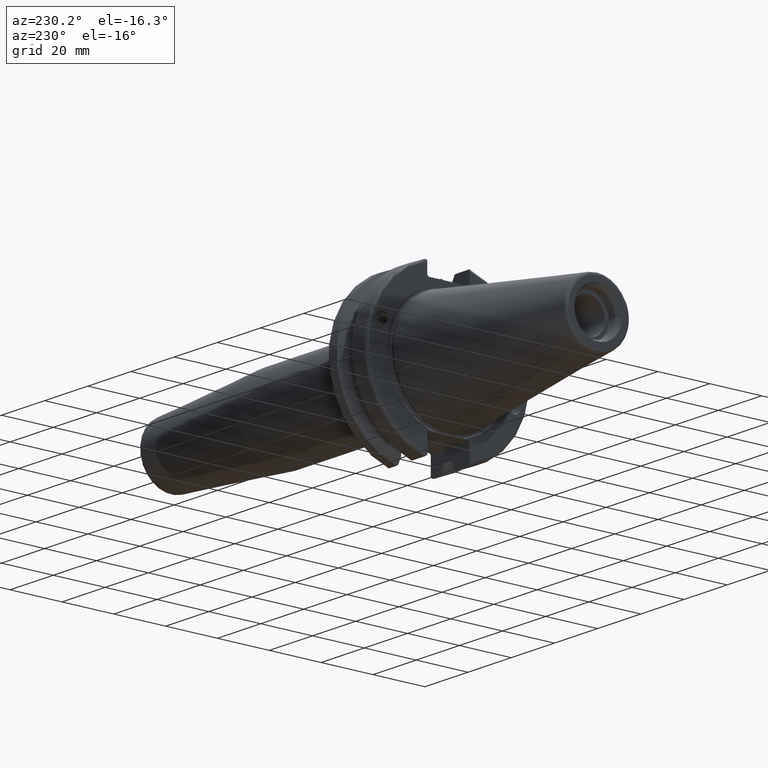
[diagram: clean part render]
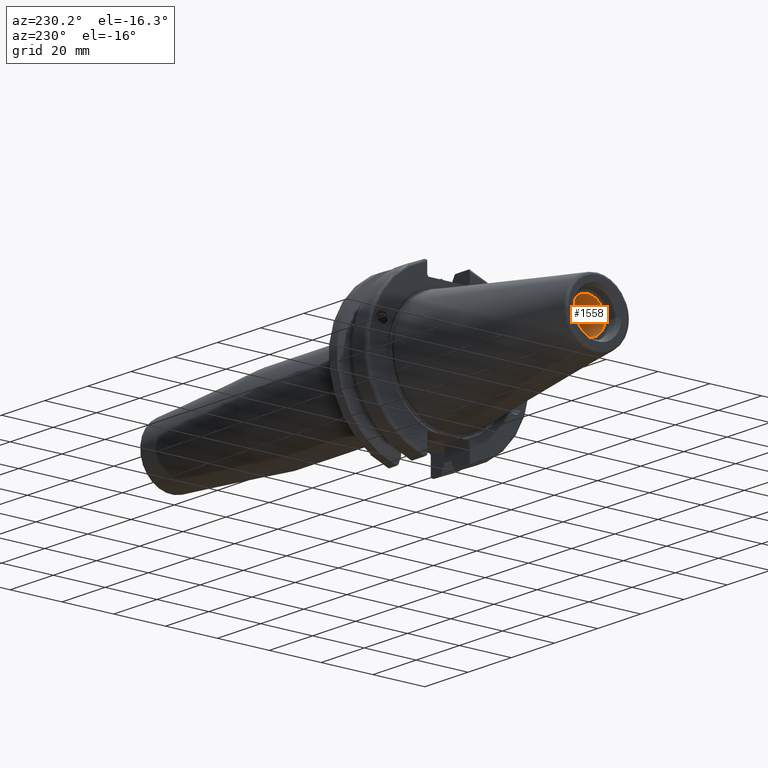
[diagram: same view with one face highlighted and labeled with its STEP entity id]
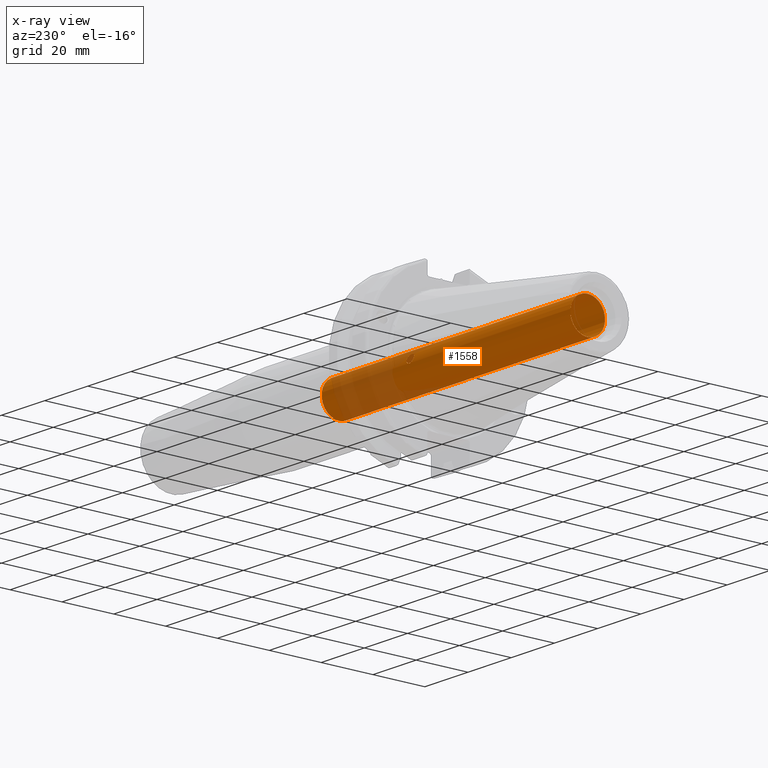
[diagram: x-ray of the same camera — body ghosted, the highlighted face saturated]
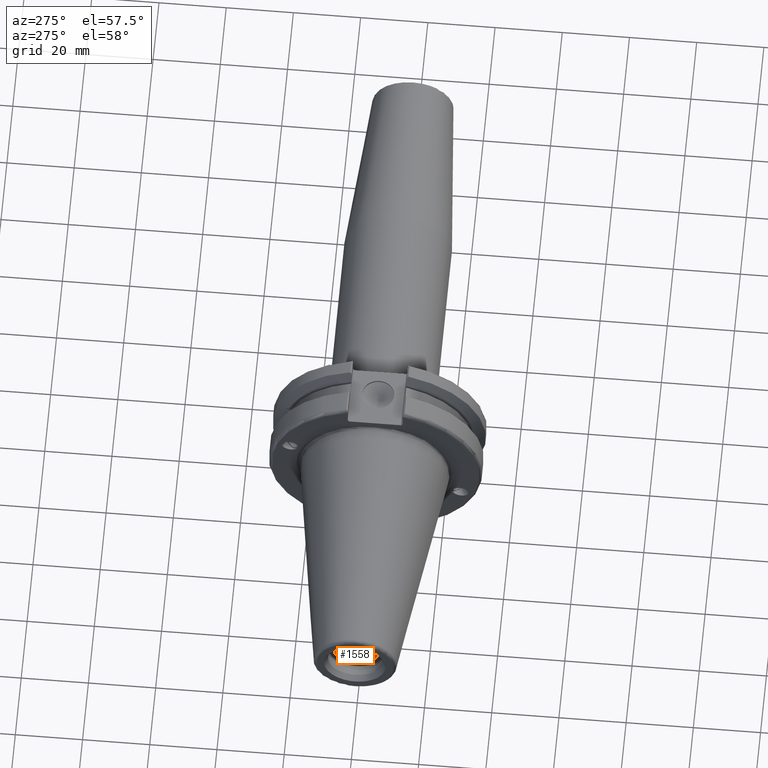
[diagram: same view with one face highlighted and labeled with its STEP entity id]
A machine part, auxiliary view. The second image highlights one B-rep face of the part: STEP entity #1558.
The next image is the same camera in x-ray: the body ghosted, the highlighted face saturated — about 26% of this face is hidden behind the body in this view.
A second angle (auxiliary view) of the same face is appended — the face is thin or edge-on in the first view.
In plain terms, the highlighted cylindrical surface (bore or boss wall) has radius 6.6929 mm, axis along (-1, 0, 0).
Its self-contained STEP definition (entity closure, byte-faithful):
#33=B_SPLINE_CURVE_WITH_KNOTS('',3,(#2405,#2406,#2407,#2408,#2409,#2410,
#2411,#2412,#2413,#2414,#2415,#2416,#2417,#2418,#2419,#2420,#2421,#2422,
#2423,#2424,#2425,#2426,#2427,#2428,#2429,#2430),.UNSPECIFIED.,.F.,.F.,
(4,2,2,2,2,2,2,2,2,2,2,2,4),(0.,0.0613281361392533,0.122656272278507,0.183976883359657,
0.245297494440808,0.306618105521959,0.36793871660311,0.429266852742363,
0.490594988881616,0.551923125020869,0.613251261160123,0.674571872241273,
0.735892483322424),.UNSPECIFIED.);
#34=B_SPLINE_CURVE_WITH_KNOTS('',3,(#2431,#2432,#2433,#2434,#2435,#2436,
#2437,#2438,#2439,#2440),.UNSPECIFIED.,.F.,.F.,(4,2,2,2,4),(0.735892483322424,
0.797213094403575,0.858533705484725,0.919861841623979,0.981189977763232),
 .UNSPECIFIED.);
#35=B_SPLINE_CURVE_WITH_KNOTS('',3,(#2443,#2444,#2445,#2446,#2447,#2448,
#2449,#2450,#2451,#2452,#2453,#2454,#2455,#2456,#2457,#2458,#2459,#2460,
#2461,#2462,#2463,#2464,#2465,#2466,#2467,#2468),.UNSPECIFIED.,.F.,.F.,
(4,2,2,2,2,2,2,2,2,2,2,2,4),(0.,0.0613281361392532,0.122656272278506,0.183976883359657,
0.245297494440808,0.306618105521959,0.367938716603109,0.429266852742362,
0.490594988881616,0.551923125020869,0.613251261160123,0.674571872241273,
0.735892483322424),.UNSPECIFIED.);
#36=B_SPLINE_CURVE_WITH_KNOTS('',3,(#2469,#2470,#2471,#2472,#2473,#2474,
#2475,#2476,#2477,#2478),.UNSPECIFIED.,.F.,.F.,(4,2,2,2,4),(0.735892483322424,
0.797213094403575,0.858533705484725,0.919861841623979,0.981189977763232),
 .UNSPECIFIED.);
#67=FACE_BOUND('',#285,.T.);
#68=FACE_BOUND('',#286,.T.);
#151=CYLINDRICAL_SURFACE('',#1692,6.6929);
#189=FACE_OUTER_BOUND('',#284,.T.);
#284=EDGE_LOOP('',(#1110,#1111,#1112,#1113));
#285=EDGE_LOOP('',(#1114,#1115));
#286=EDGE_LOOP('',(#1116,#1117));
#395=LINE('',#2402,#493);
#493=VECTOR('',#1934,6.6929);
#590=CIRCLE('',#1691,6.6929);
#591=CIRCLE('',#1693,6.6929);
#677=VERTEX_POINT('',#2396);
#678=VERTEX_POINT('',#2400);
#679=VERTEX_POINT('',#2403);
#680=VERTEX_POINT('',#2404);
#681=VERTEX_POINT('',#2441);
#682=VERTEX_POINT('',#2442);
#844=EDGE_CURVE('',#677,#677,#590,.T.);
#846=EDGE_CURVE('',#678,#678,#591,.T.);
#847=EDGE_CURVE('',#678,#677,#395,.T.);
#848=EDGE_CURVE('',#679,#680,#33,.T.);
#849=EDGE_CURVE('',#680,#679,#34,.T.);
#850=EDGE_CURVE('',#681,#682,#35,.T.);
#851=EDGE_CURVE('',#682,#681,#36,.T.);
#1110=ORIENTED_EDGE('',*,*,#846,.F.);
#1111=ORIENTED_EDGE('',*,*,#847,.T.);
#1112=ORIENTED_EDGE('',*,*,#844,.F.);
#1113=ORIENTED_EDGE('',*,*,#847,.F.);
#1114=ORIENTED_EDGE('',*,*,#848,.F.);
#1115=ORIENTED_EDGE('',*,*,#849,.F.);
#1116=ORIENTED_EDGE('',*,*,#850,.F.);
#1117=ORIENTED_EDGE('',*,*,#851,.F.);
#1558=ADVANCED_FACE('',(#189,#67,#68),#151,.F.);
#1691=AXIS2_PLACEMENT_3D('',#2397,#1927,#1928);
#1692=AXIS2_PLACEMENT_3D('',#2399,#1930,#1931);
#1693=AXIS2_PLACEMENT_3D('',#2401,#1932,#1933);
#1927=DIRECTION('center_axis',(-1.,0.,0.));
#1928=DIRECTION('ref_axis',(0.,0.,1.));
#1930=DIRECTION('center_axis',(-1.,0.,0.));
#1931=DIRECTION('ref_axis',(0.,0.,1.));
#1932=DIRECTION('center_axis',(1.,0.,0.));
#1933=DIRECTION('ref_axis',(0.,0.,1.));
#1934=DIRECTION('',(1.,0.,0.));
#2396=CARTESIAN_POINT('',(51.75,-8.19643856201333E-16,-6.6929));
#2397=CARTESIAN_POINT('Origin',(51.75,0.,0.));
#2399=CARTESIAN_POINT('Origin',(-8.25000000000001,0.,0.));
#2400=CARTESIAN_POINT('',(-63.45,8.19643856201332E-16,-6.6929));
#2401=CARTESIAN_POINT('Origin',(-63.45,0.,0.));
#2402=CARTESIAN_POINT('',(-8.25000000000001,-8.19643856201332E-16,-6.6929));
#2403=CARTESIAN_POINT('',(11.176,-6.65643365521149,-0.697711547681303));
#2404=CARTESIAN_POINT('',(9.555,-6.28926874165801,-2.28910661726437));
#2405=CARTESIAN_POINT('Ctrl Pts',(11.176,-6.65643365521149,-0.697711547681303));
#2406=CARTESIAN_POINT('Ctrl Pts',(11.3804271204642,-6.65643365521149,-0.697711547681303));
#2407=CARTESIAN_POINT('Ctrl Pts',(11.5978966151745,-6.65241872830876,-0.739904750929788));
#2408=CARTESIAN_POINT('Ctrl Pts',(11.9970199575703,-6.63148496397673,-0.908592848123725));
#2409=CARTESIAN_POINT('Ctrl Pts',(12.1787480110646,-6.6140166083086,-1.03484342994688));
#2410=CARTESIAN_POINT('Ctrl Pts',(12.4656745692937,-6.5627497245329,-1.32152467584939));
#2411=CARTESIAN_POINT('Ctrl Pts',(12.5902995766669,-6.52541782463156,-1.501335759233));
#2412=CARTESIAN_POINT('Ctrl Pts',(12.7559843222182,-6.42387889335004,-1.88914446481651));
#2413=CARTESIAN_POINT('Ctrl Pts',(12.797,-6.35917835562732,-2.0970315314809));
#2414=CARTESIAN_POINT('Ctrl Pts',(12.797,-6.2193591276887,-2.48118170304783));
#2415=CARTESIAN_POINT('Ctrl Pts',(12.7559843222182,-6.13529538441205,-2.68202113925062));
#2416=CARTESIAN_POINT('Ctrl Pts',(12.5902995766669,-5.96380008760284,-3.04436781008461));
#2417=CARTESIAN_POINT('Ctrl Pts',(12.4656745692937,-5.87681764559004,-3.20610757402446));
#2418=CARTESIAN_POINT('Ctrl Pts',(12.1787480110646,-5.73181520422681,-3.45867186707276));
#2419=CARTESIAN_POINT('Ctrl Pts',(11.9970199575703,-5.66404443130516,-3.566613866304));
#2420=CARTESIAN_POINT('Ctrl Pts',(11.5978966151745,-5.57165000636742,-3.70929241011646));
#2421=CARTESIAN_POINT('Ctrl Pts',(11.3804271204642,-5.54760435054967,-3.74419502426922));
#2422=CARTESIAN_POINT('Ctrl Pts',(10.9715728795358,-5.54760435054967,-3.74419502426922));
#2423=CARTESIAN_POINT('Ctrl Pts',(10.7541033848255,-5.57165000636742,-3.70929241011646));
#2424=CARTESIAN_POINT('Ctrl Pts',(10.3549800424297,-5.66404443130516,-3.566613866304));
#2425=CARTESIAN_POINT('Ctrl Pts',(10.1732519889354,-5.73181520422682,-3.45867186707276));
#2426=CARTESIAN_POINT('Ctrl Pts',(9.88632543070629,-5.87681764559004,-3.20610757402446));
#2427=CARTESIAN_POINT('Ctrl Pts',(9.76170042333311,-5.96380008760285,-3.04436781008461));
#2428=CARTESIAN_POINT('Ctrl Pts',(9.59601567778177,-6.13529538441205,-2.68202113925061));
#2429=CARTESIAN_POINT('Ctrl Pts',(9.555,-6.2193591276887,-2.48118170304783));
#2430=CARTESIAN_POINT('Ctrl Pts',(9.555,-6.28926874165801,-2.28910661726437));
#2431=CARTESIAN_POINT('Ctrl Pts',(9.555,-6.28926874165801,-2.28910661726437));
#2432=CARTESIAN_POINT('Ctrl Pts',(9.555,-6.35917835562732,-2.0970315314809));
#2433=CARTESIAN_POINT('Ctrl Pts',(9.59601567778177,-6.42387889335004,-1.88914446481651));
#2434=CARTESIAN_POINT('Ctrl Pts',(9.76170042333311,-6.52541782463156,-1.501335759233));
#2435=CARTESIAN_POINT('Ctrl Pts',(9.88632543070629,-6.5627497245329,-1.32152467584939));
#2436=CARTESIAN_POINT('Ctrl Pts',(10.1732519889354,-6.6140166083086,-1.03484342994688));
#2437=CARTESIAN_POINT('Ctrl Pts',(10.3549800424297,-6.63148496397672,-0.908592848123728));
#2438=CARTESIAN_POINT('Ctrl Pts',(10.7541033848255,-6.65241872830876,-0.739904750929788));
#2439=CARTESIAN_POINT('Ctrl Pts',(10.9715728795358,-6.65643365521149,-0.697711547681304));
#2440=CARTESIAN_POINT('Ctrl Pts',(11.176,-6.65643365521149,-0.697711547681304));
#2441=CARTESIAN_POINT('',(11.176,6.65643365521149,0.697711547681304));
#2442=CARTESIAN_POINT('',(9.555,6.28926874165801,2.28910661726437));
#2443=CARTESIAN_POINT('Ctrl Pts',(11.176,6.65643365521149,0.697711547681304));
#2444=CARTESIAN_POINT('Ctrl Pts',(11.3804271204642,6.65643365521149,0.697711547681304));
#2445=CARTESIAN_POINT('Ctrl Pts',(11.5978966151745,6.65241872830876,0.739904750929789));
#2446=CARTESIAN_POINT('Ctrl Pts',(11.9970199575703,6.63148496397672,0.908592848123726));
#2447=CARTESIAN_POINT('Ctrl Pts',(12.1787480110646,6.6140166083086,1.03484342994689));
#2448=CARTESIAN_POINT('Ctrl Pts',(12.4656745692937,6.5627497245329,1.32152467584939));
#2449=CARTESIAN_POINT('Ctrl Pts',(12.5902995766669,6.52541782463156,1.501335759233));
#2450=CARTESIAN_POINT('Ctrl Pts',(12.7559843222182,6.42387889335004,1.88914446481652));
#2451=CARTESIAN_POINT('Ctrl Pts',(12.797,6.35917835562732,2.0970315314809));
#2452=CARTESIAN_POINT('Ctrl Pts',(12.797,6.2193591276887,2.48118170304783));
#2453=CARTESIAN_POINT('Ctrl Pts',(12.7559843222182,6.13529538441205,2.68202113925062));
#2454=CARTESIAN_POINT('Ctrl Pts',(12.5902995766669,5.96380008760284,3.04436781008461));
#2455=CARTESIAN_POINT('Ctrl Pts',(12.4656745692937,5.87681764559004,3.20610757402446));
#2456=CARTESIAN_POINT('Ctrl Pts',(12.1787480110646,5.73181520422681,3.45867186707277));
#2457=CARTESIAN_POINT('Ctrl Pts',(11.9970199575703,5.66404443130516,3.566613866304));
#2458=CARTESIAN_POINT('Ctrl Pts',(11.5978966151745,5.57165000636742,3.70929241011646));
#2459=CARTESIAN_POINT('Ctrl Pts',(11.3804271204642,5.54760435054967,3.74419502426922));
#2460=CARTESIAN_POINT('Ctrl Pts',(10.9715728795358,5.54760435054967,3.74419502426922));
#2461=CARTESIAN_POINT('Ctrl Pts',(10.7541033848255,5.57165000636742,3.70929241011646));
#2462=CARTESIAN_POINT('Ctrl Pts',(10.3549800424297,5.66404443130516,3.566613866304));
#2463=CARTESIAN_POINT('Ctrl Pts',(10.1732519889354,5.73181520422681,3.45867186707276));
#2464=CARTESIAN_POINT('Ctrl Pts',(9.88632543070629,5.87681764559004,3.20610757402446));
#2465=CARTESIAN_POINT('Ctrl Pts',(9.76170042333311,5.96380008760285,3.04436781008461));
#2466=CARTESIAN_POINT('Ctrl Pts',(9.59601567778177,6.13529538441206,2.68202113925062));
#2467=CARTESIAN_POINT('Ctrl Pts',(9.555,6.2193591276887,2.48118170304783));
#2468=CARTESIAN_POINT('Ctrl Pts',(9.555,6.28926874165801,2.28910661726437));
#2469=CARTESIAN_POINT('Ctrl Pts',(9.555,6.28926874165801,2.28910661726437));
#2470=CARTESIAN_POINT('Ctrl Pts',(9.555,6.35917835562732,2.0970315314809));
#2471=CARTESIAN_POINT('Ctrl Pts',(9.59601567778177,6.42387889335004,1.88914446481651));
#2472=CARTESIAN_POINT('Ctrl Pts',(9.76170042333311,6.52541782463156,1.501335759233));
#2473=CARTESIAN_POINT('Ctrl Pts',(9.88632543070629,6.5627497245329,1.32152467584939));
#2474=CARTESIAN_POINT('Ctrl Pts',(10.1732519889354,6.6140166083086,1.03484342994688));
#2475=CARTESIAN_POINT('Ctrl Pts',(10.3549800424297,6.63148496397672,0.908592848123729));
#2476=CARTESIAN_POINT('Ctrl Pts',(10.7541033848255,6.65241872830876,0.739904750929791));
#2477=CARTESIAN_POINT('Ctrl Pts',(10.9715728795358,6.65643365521149,0.697711547681305));
#2478=CARTESIAN_POINT('Ctrl Pts',(11.176,6.65643365521149,0.697711547681305));